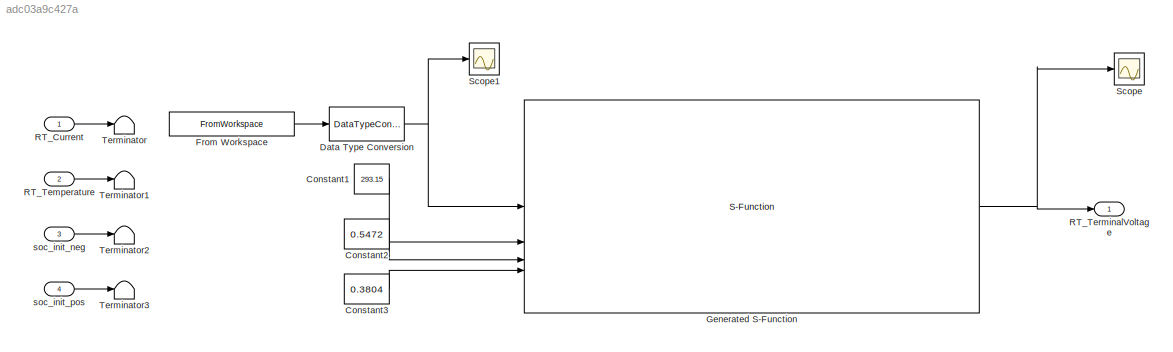
MODEL slx_adc03a9c427a
KIND model
CONFIG AbsTol = auto
CONFIG EnableMultiTasking = off
CONFIG FixedStep = 1
CONFIG MaxStep = auto
CONFIG MinStep = auto
CONFIG RelTol = 1e-3
CONFIG SampleTimeConstraint = Unconstrained
CONFIG SolverName = FixedStepDiscrete
CONFIG StartTime = 0.0
CONFIG StopTime = 1000
BLOCK [Constant] Constant1
  OutDataTypeStr = Inherit: Inherit via back propagation
  Value = 293.15
BLOCK [Constant] Constant2
  OutDataTypeStr = Inherit: Inherit via back propagation
  Value = 0.5472
BLOCK [Constant] Constant3
  OutDataTypeStr = Inherit: Inherit via back propagation
  Value = 0.3804
BLOCK [DataTypeConversion] Data Type Conversion
  RndMeth = Floor
  SaturateOnIntegerOverflow = off
BLOCK [FromWorkspace] From Workspace
  OutputAfterFinalValue = Holding final value
  SampleTime = -1
  VariableName = CurrentProfileForSimulink_1s
BLOCK [S-Function] Generated S-Function
  CopyFcn = if ~strcmp(get_param(gcb,'Linkstatus'),'none') && ...\n~strcmp(get_param(gcb,'Linkstatus'),'implicit')      \n  set_param(gcb,'LinkStatus','none');                \nend
  EnableBusSupport = off
  FunctionName = Tripple_Area_Transmission_Line__sf
  SFcnIsStateOwnerBlock = on
  SFcnStateName = DWORK0,DWORK1,DWORK2,DWORK3,DWORK4,DWORK5,DWORK6,DWORK7,DWORK8,DWORK9,DWORK10,DWORK11,DWORK12,DWORK13,DWORK14,DWORK15
  SFunctionDeploymentMode = off
BLOCK [Inport] RT_Current
  OutDataTypeStr = single
  PortDimensions = 1
BLOCK [Inport] RT_Temperature
  OutDataTypeStr = single
  Port = 2
  PortDimensions = 1
BLOCK [Outport] RT_TerminalVoltage
  OutDataTypeStr = single
  PortDimensions = 1
BLOCK [Scope] Scope
  Floating = off
  NumInputPorts = 1
  ScopeSpecificationString = Simulink.scopes.TimeScopeBlockCfg('CurrentConfiguration', extmgr.ConfigurationSet(extmgr.Configuration('Core','General UI',true),extmgr.Configuration('Core','Source UI',true),extmgr.Configuration('Sources','WiredSimulink',true),extmgr.Configuration('Visuals','Time Domain',true,'SerializedDisplays',{struct('MinYLimReal','3.83847','MaxYLimReal','3.88042','YLabelReal','','MinYLimMag','3.83847','MaxYL...<+1382ch>
BLOCK [Scope] Scope1
  Floating = off
  NumInputPorts = 1
  ScopeSpecificationString = Simulink.scopes.TimeScopeBlockCfg('CurrentConfiguration', extmgr.ConfigurationSet(extmgr.Configuration('Core','General UI',true),extmgr.Configuration('Core','Source UI',true),extmgr.Configuration('Sources','WiredSimulink',true,'DataLoggingVariableName','ScopeData1'),extmgr.Configuration('Visuals','Time Domain',true,'SerializedDisplays',{struct('MinYLimReal','-6.20966','MaxYLimReal','6.2099','YLabe...<+1419ch>
BLOCK [Terminator] Terminator
BLOCK [Terminator] Terminator1
BLOCK [Terminator] Terminator2
BLOCK [Terminator] Terminator3
BLOCK [Inport] soc_init_neg
  OutDataTypeStr = single
  Port = 3
  PortDimensions = 1
BLOCK [Inport] soc_init_pos
  OutDataTypeStr = single
  Port = 4
  PortDimensions = 1
LINE Constant1:1 -> Generated S-Function:2
LINE Constant2:1 -> Generated S-Function:3
LINE Constant3:1 -> Generated S-Function:4
NET Data Type Conversion:1 -> Generated S-Function:1, Scope1:1
LINE From Workspace:1 -> Data Type Conversion:1
NET Generated S-Function:1 -> RT_TerminalVoltage:1, Scope:1
LINE RT_Current:1 -> Terminator:1
LINE RT_Temperature:1 -> Terminator1:1
LINE soc_init_neg:1 -> Terminator2:1
LINE soc_init_pos:1 -> Terminator3:1
note: NET lines group one-source signal fan-out (src -> all destinations, sorted); 1:1 wires keep LINE
